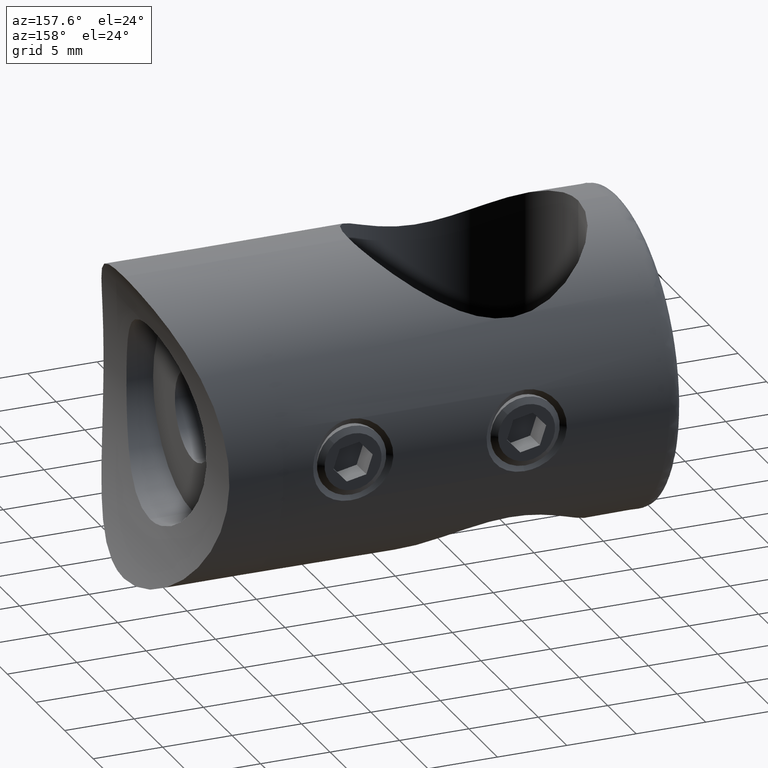
[diagram: clean part render]
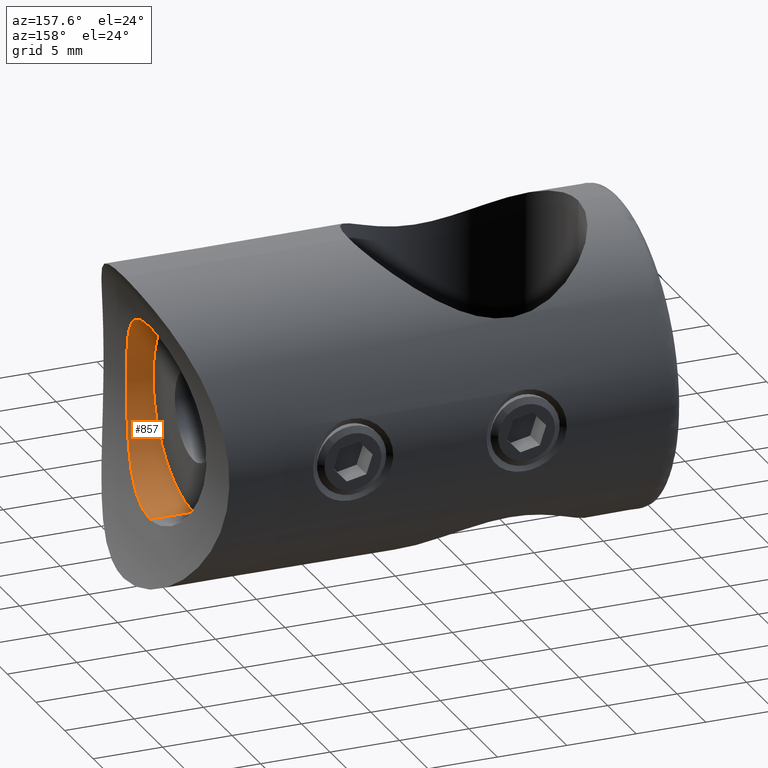
[diagram: same view with one face highlighted and labeled with its STEP entity id]
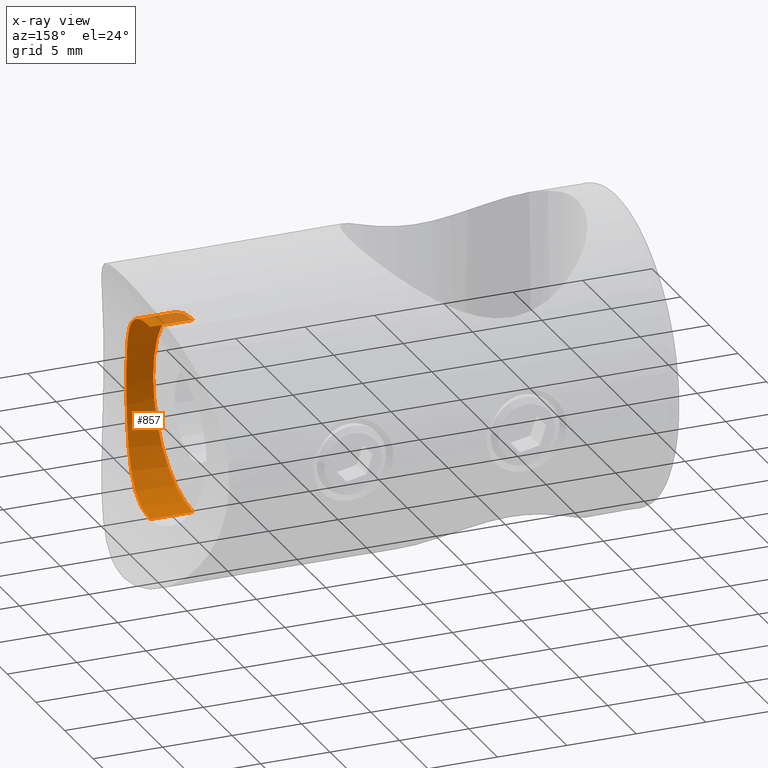
[diagram: x-ray of the same camera — body ghosted, the highlighted face saturated]
A machine part, auxiliary view. The second image highlights one B-rep face of the part: STEP entity #857.
The next image is the same camera in x-ray: the body ghosted, the highlighted face saturated — about 5% of this face is hidden behind the body in this view.
In plain terms, the highlighted cylindrical surface (partial cylindrical patch) has radius 7 mm, axis along (1, 0, 0).
Its self-contained STEP definition (entity closure, byte-faithful):
#17 = CARTESIAN_POINT ( 'NONE',  ( -5.179486185295694200, 4.423360837087490000E-016, -6.999999999999999100 ) ) ;
#195 = CARTESIAN_POINT ( 'NONE',  ( -5.629161062673039100, -4.269513398563105100, -5.551883403856534100 ) ) ;
#242 = ORIENTED_EDGE ( 'NONE', *, *, #808, .F. ) ;
#277 = CARTESIAN_POINT ( 'NONE',  ( -5.260942936111332500, -1.820687852707016700, -6.763012086388169300 ) ) ;
#300 = CARTESIAN_POINT ( 'NONE',  ( -5.704410566985867300, -4.624076666830826600, 5.275003879230412800 ) ) ;
#329 = CARTESIAN_POINT ( 'NONE',  ( -5.241932631012228500, -1.597940875598650400, -6.819026901808920900 ) ) ;
#337 = CARTESIAN_POINT ( 'NONE',  ( -6.251670810143951800, -6.639955805109369900, 2.263606887662339000 ) ) ;
#348 = EDGE_CURVE ( 'NONE', #3254, #977, #1904, .T. ) ;
#425 = CYLINDRICAL_SURFACE ( 'NONE', #5495, 6.999999999999999100 ) ;
#442 = CARTESIAN_POINT ( 'NONE',  ( -8.288489208633095000, 0.0000000000000000000, 0.0000000000000000000 ) ) ;
#477 = CARTESIAN_POINT ( 'NONE',  ( 0.0000000000000000000, 0.0000000000000000000, -6.999999999999999100 ) ) ;
#518 = ORIENTED_EDGE ( 'NONE', *, *, #348, .F. ) ;
#524 = EDGE_CURVE ( 'NONE', #759, #977, #1942, .T. ) ;
#533 = DIRECTION ( 'NONE',  ( 0.0000000000000000000, 0.0000000000000000000, -1.000000000000000000 ) ) ;
#632 = EDGE_CURVE ( 'NONE', #759, #1903, #5008, .T. ) ;
#676 = AXIS2_PLACEMENT_3D ( 'NONE', #442, #5479, #5110 ) ;
#728 = CARTESIAN_POINT ( 'NONE',  ( -6.077804512078155400, -6.067823697220614300, 3.519659559019841400 ) ) ;
#746 = CARTESIAN_POINT ( 'NONE',  ( -5.211215016339649800, -1.149738218924355700, 6.908794784625766500 ) ) ;
#759 = VERTEX_POINT ( 'NONE', #2662 ) ;
#765 = CARTESIAN_POINT ( 'NONE',  ( -6.248260576882698200, -6.627278973338429000, -2.265418944626872700 ) ) ;
#808 = EDGE_CURVE ( 'NONE', #1903, #3254, #3430, .T. ) ;
#857 = ADVANCED_FACE ( 'NONE', ( #2681 ), #425, .F. ) ;
#977 = VERTEX_POINT ( 'NONE', #1774 ) ;
#1050 = CARTESIAN_POINT ( 'NONE',  ( -5.257825948164851900, -1.829101230357522900, 6.772574258110037000 ) ) ;
#1066 = CARTESIAN_POINT ( 'NONE',  ( -5.859476236663648600, -5.262749459192219700, 4.621211661717173200 ) ) ;
#1160 = CARTESIAN_POINT ( 'NONE',  ( -6.368419732180515600, -6.999789585581377000, -0.4635428054799258800 ) ) ;
#1492 = CARTESIAN_POINT ( 'NONE',  ( -5.820497320472161300, -5.107831614054712900, 4.791867479294428900 ) ) ;
#1579 = CARTESIAN_POINT ( 'NONE',  ( -5.331545839804205000, -2.480481399305150900, -6.549786701060117600 ) ) ;
#1586 = CARTESIAN_POINT ( 'NONE',  ( -5.935119000200609600, -5.552702096828068300, 4.268445679225630200 ) ) ;
#1636 = ORIENTED_EDGE ( 'NONE', *, *, #632, .F. ) ;
#1774 = CARTESIAN_POINT ( 'NONE',  ( -5.179486185295696800, 8.560259022009927000E-016, 6.999999999999999100 ) ) ;
#1903 = VERTEX_POINT ( 'NONE', #3772 ) ;
#1904 = B_SPLINE_CURVE_WITH_KNOTS ( 'NONE', 3,
 ( #17, #2911, #2869, #329, #277, #3267, #1579, #2124, #4743, #4974, #195, #4436, #4884, #4468, #2427, #4868, #4988, #3192, #765, #1912, #5385, #2882, #1160, #3622, #2323, #3286, #337, #2444, #728, #5405, #1586, #1066, #1492, #300, #4454, #2746, #3326, #2006, #1050, #746, #2861, #3749, #2845, #5279 ),
 .UNSPECIFIED., .F., .F.,
 ( 4, 2, 2, 2, 2, 2, 2, 2, 2, 2, 2, 2, 2, 2, 2, 2, 2, 2, 2, 2, 2, 4 ),
 ( 5.234827532439083200E-019, 0.001377526408893947100, 0.002066289613340920000, 0.002755052817787892500, 0.004132579226681841600, 0.004821342431128814200, 0.005510105635575787700, 0.006887632044469736400, 0.008265158453363685000, 0.008953921657810660200, 0.009642684862257635400, 0.01102021127115158400, 0.01239773768004553300, 0.01377526408893948100, 0.01515279049783343000, 0.01584155370228040900, 0.01653031690672738000, 0.01790784331562133400, 0.01928536972451528100, 0.02066289613340923200, 0.02135165933785620700, 0.02204042254230318200 ),
 .UNSPECIFIED. ) ;
#1912 = CARTESIAN_POINT ( 'NONE',  ( -6.290923000749608600, -6.761750879404204700, -1.825287547211253500 ) ) ;
#1942 = LINE ( 'NONE', #3809, #3489 ) ;
#2006 = CARTESIAN_POINT ( 'NONE',  ( -5.303022563481897900, -2.265791029283093800, 6.638854659542242400 ) ) ;
#2124 = CARTESIAN_POINT ( 'NONE',  ( -5.416138067669964900, -3.114967955019477800, -6.285455420725933000 ) ) ;
#2147 = ORIENTED_EDGE ( 'NONE', *, *, #524, .T. ) ;
#2184 = CARTESIAN_POINT ( 'NONE',  ( 0.0000000000000000000, 0.0000000000000000000, 0.0000000000000000000 ) ) ;
#2220 = VECTOR ( 'NONE', #3505, 1000.000000000000000 ) ;
#2323 = CARTESIAN_POINT ( 'NONE',  ( -6.353121308803102900, -6.953842172220242400, 0.9246874319449256400 ) ) ;
#2427 = CARTESIAN_POINT ( 'NONE',  ( -5.936014198554354400, -5.559724965750263000, -4.277978718664147800 ) ) ;
#2444 = CARTESIAN_POINT ( 'NONE',  ( -6.142692415534001200, -6.285353356486167400, 3.115647993561863500 ) ) ;
#2662 = CARTESIAN_POINT ( 'NONE',  ( -8.288489208633095000, 8.572527594031472200E-016, 6.999999999999999100 ) ) ;
#2681 = FACE_OUTER_BOUND ( 'NONE', #5148, .T. ) ;
#2746 = CARTESIAN_POINT ( 'NONE',  ( -5.482968557991992700, -3.517920942523255200, 6.068878514196767600 ) ) ;
#2845 = CARTESIAN_POINT ( 'NONE',  ( -5.179486185295693300, -0.2295230932195857500, 6.999999999999997300 ) ) ;
#2861 = CARTESIAN_POINT ( 'NONE',  ( -5.199242758141564600, -0.9185840210779956400, 6.943305463128310400 ) ) ;
#2869 = CARTESIAN_POINT ( 'NONE',  ( -5.195769705298836500, -0.9236346322755778500, -6.953924847456433700 ) ) ;
#2882 = CARTESIAN_POINT ( 'NONE',  ( -6.353372025205970000, -6.954609455460398800, -0.9200622718676909600 ) ) ;
#2911 = CARTESIAN_POINT ( 'NONE',  ( -5.179486185295697700, -0.4660657317473310100, -7.000000000000000000 ) ) ;
#3192 = CARTESIAN_POINT ( 'NONE',  ( -6.223938348245591900, -6.549724053246026600, -2.480529630213190300 ) ) ;
#3254 = VERTEX_POINT ( 'NONE', #3884 ) ;
#3267 = CARTESIAN_POINT ( 'NONE',  ( -5.305739454856417400, -2.262090834860986700, -6.628437356758022100 ) ) ;
#3286 = CARTESIAN_POINT ( 'NONE',  ( -6.294576092854126300, -6.773391379231759000, 1.825414206884164300 ) ) ;
#3326 = CARTESIAN_POINT ( 'NONE',  ( -5.415170552347426300, -3.108453153060329700, 6.288538715324473400 ) ) ;
#3430 = LINE ( 'NONE', #477, #2220 ) ;
#3463 = DIRECTION ( 'NONE',  ( 1.000000000000000000, -0.0000000000000000000, -0.0000000000000000000 ) ) ;
#3489 = VECTOR ( 'NONE', #3845, 1000.000000000000000 ) ;
#3505 = DIRECTION ( 'NONE',  ( 1.000000000000000000, -0.0000000000000000000, -0.0000000000000000000 ) ) ;
#3622 = CARTESIAN_POINT ( 'NONE',  ( -6.368558205546745100, -7.000208962100721500, 0.4571659018895069500 ) ) ;
#3749 = CARTESIAN_POINT ( 'NONE',  ( -5.183436230453397200, -0.4591439087117288900, 6.988739101524692500 ) ) ;
#3772 = CARTESIAN_POINT ( 'NONE',  ( -8.288489208633095000, 0.0000000000000000000, -6.999999999999999100 ) ) ;
#3809 = CARTESIAN_POINT ( 'NONE',  ( 0.0000000000000000000, 8.572527594031472200E-016, 6.999999999999999100 ) ) ;
#3845 = DIRECTION ( 'NONE',  ( 1.000000000000000000, -0.0000000000000000000, -0.0000000000000000000 ) ) ;
#3884 = CARTESIAN_POINT ( 'NONE',  ( -5.179486185295694200, 4.423360837087490000E-016, -6.999999999999999100 ) ) ;
#4436 = CARTESIAN_POINT ( 'NONE',  ( -5.705676393199615500, -4.622305636338954700, -5.261791006377641200 ) ) ;
#4454 = CARTESIAN_POINT ( 'NONE',  ( -5.627458490367613900, -4.274005216804397400, 5.562367624011528700 ) ) ;
#4468 = CARTESIAN_POINT ( 'NONE',  ( -5.859715960505840600, -5.271013077780102300, -4.628365088970865000 ) ) ;
#4743 = CARTESIAN_POINT ( 'NONE',  ( -5.482559877098463400, -3.515679410769319400, -6.070276416642498100 ) ) ;
#4868 = CARTESIAN_POINT ( 'NONE',  ( -6.078922270833757600, -6.071792020199426400, -3.513543122771184600 ) ) ;
#4884 = CARTESIAN_POINT ( 'NONE',  ( -5.744309510034477200, -4.790465495934611800, -5.109087579792817000 ) ) ;
#4974 = CARTESIAN_POINT ( 'NONE',  ( -5.591226010614608600, -4.084459833562556600, -5.689398231926857000 ) ) ;
#4988 = CARTESIAN_POINT ( 'NONE',  ( -6.143192873914669500, -6.286969115386108700, -3.111538047705970600 ) ) ;
#5008 = CIRCLE ( 'NONE', #676, 6.999999999999999100 ) ;
#5110 = DIRECTION ( 'NONE',  ( 0.0000000000000000000, 0.0000000000000000000, -1.000000000000000000 ) ) ;
#5148 = EDGE_LOOP ( 'NONE', ( #1636, #2147, #518, #242 ) ) ;
#5279 = CARTESIAN_POINT ( 'NONE',  ( -5.179486185295696800, 8.560259022009927000E-016, 6.999999999999999100 ) ) ;
#5385 = CARTESIAN_POINT ( 'NONE',  ( -6.309312721332201300, -6.818816024545997200, -1.599069991875952800 ) ) ;
#5405 = CARTESIAN_POINT ( 'NONE',  ( -5.971915152673693300, -5.688346464448107700, 4.085870342826435600 ) ) ;
#5479 = DIRECTION ( 'NONE',  ( 1.000000000000000000, -0.0000000000000000000, -0.0000000000000000000 ) ) ;
#5495 = AXIS2_PLACEMENT_3D ( 'NONE', #2184, #3463, #533 ) ;